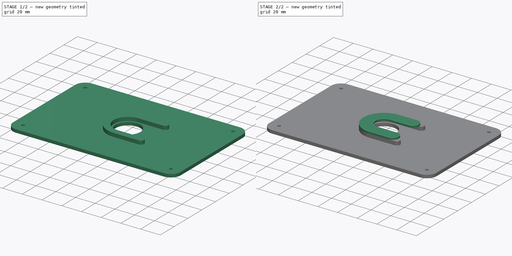
[diagram: build sequence overview — one tinted view per stage of 2, left to right]
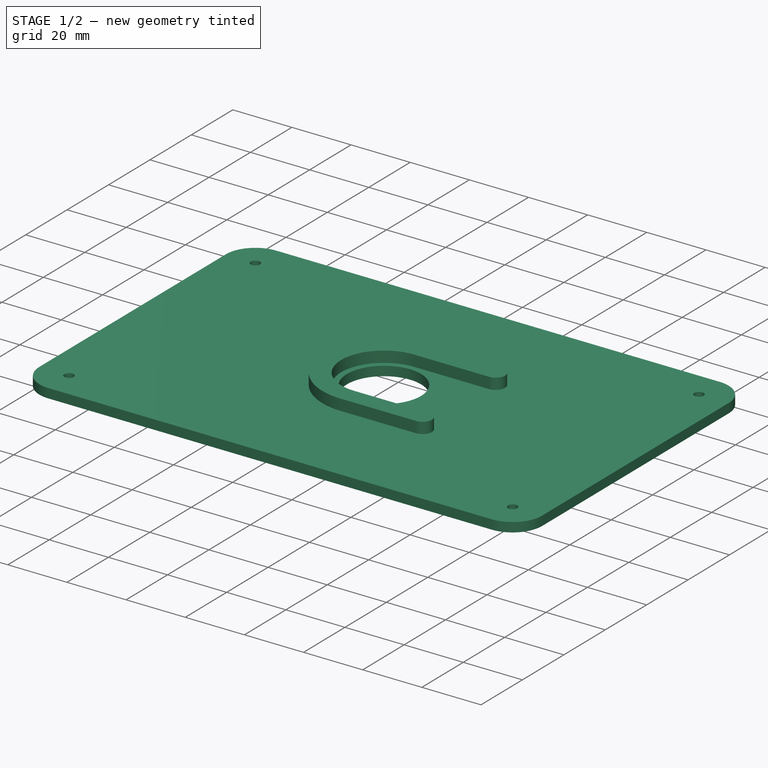
[diagram: stage 1 of 2 — iso view after this stage's code; geometry added in this stage tinted green]
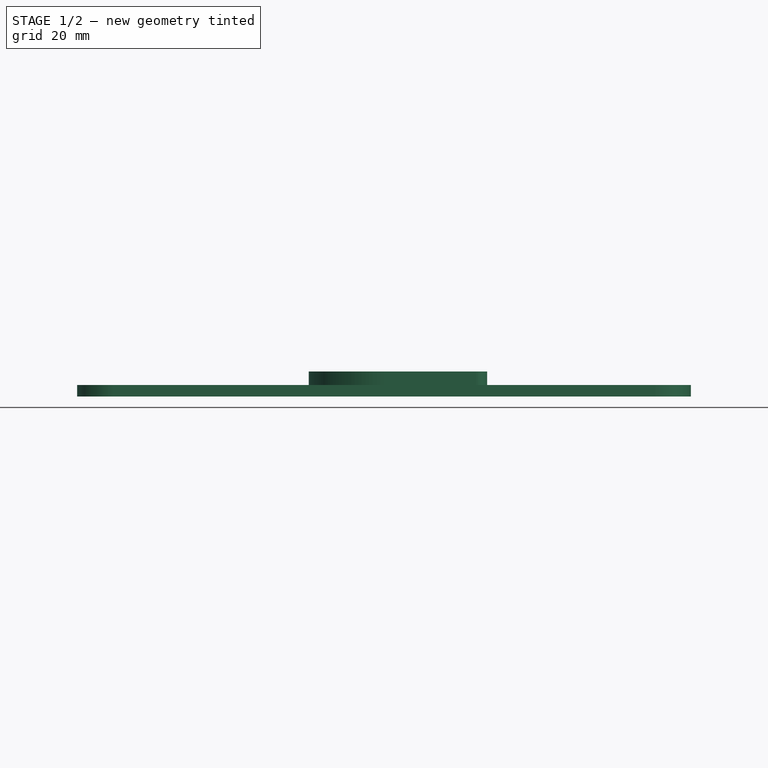
[diagram: stage 1 of 2 — front view after this stage's code; geometry added in this stage tinted green]
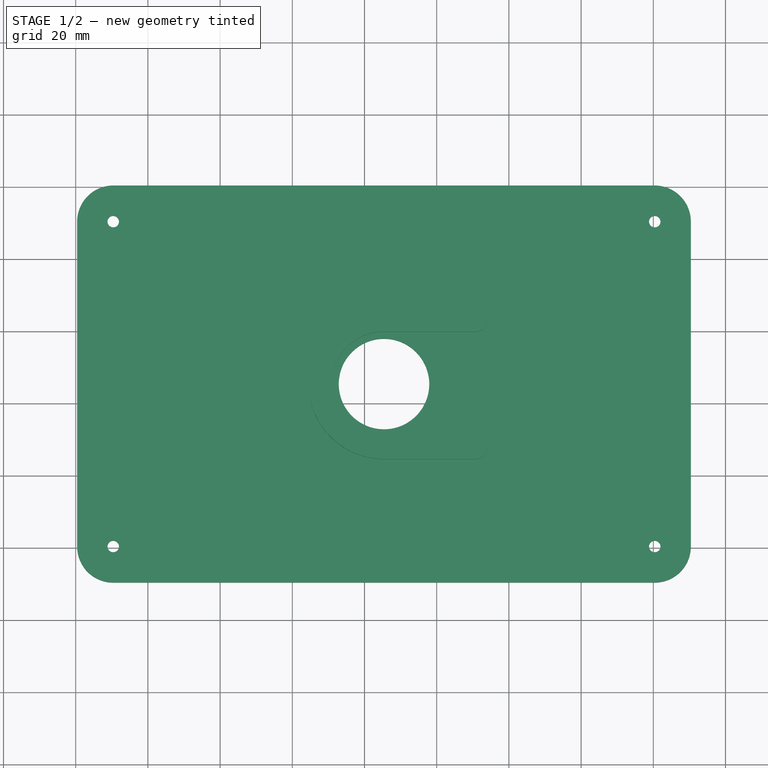
[diagram: stage 1 of 2 — top view after this stage's code; geometry added in this stage tinted green]
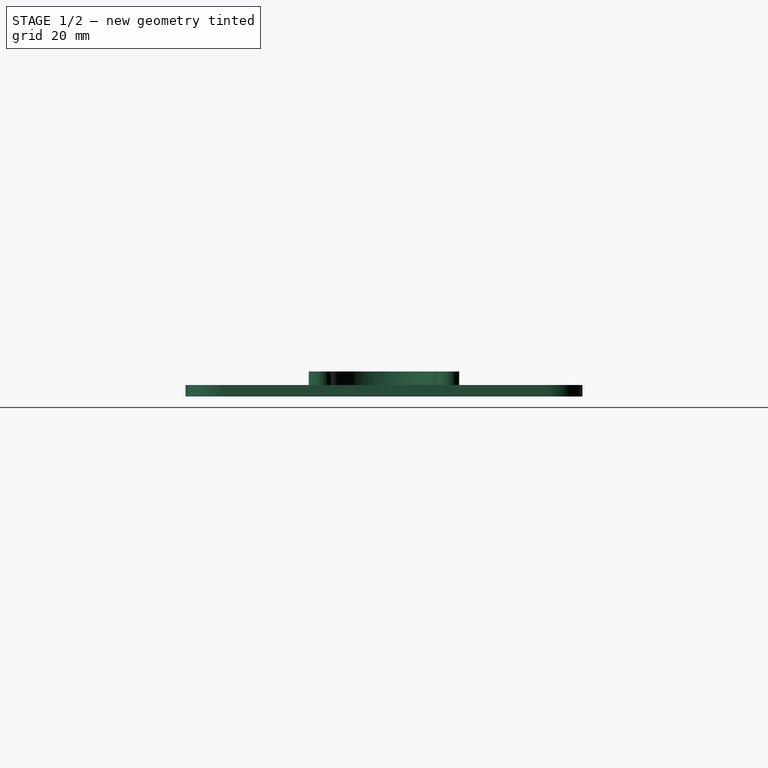
[diagram: stage 1 of 2 — right view after this stage's code; geometry added in this stage tinted green]
FCSTD DOCUMENT  (FreeCAD 1.0R39109 (Git))
Label: SpeakerBaffel150x90
License: All rights reserved
LicenseURL: http://en.wikipedia.org/wiki/All_rights_reserved
objects: Sketcher::SketchObject×3, PartDesign::Pad×3, Spreadsheet::Sheet×1, PartDesign::Body×1, App::Part×1, Part::Feature×1
note: 17 computed .brp shape members not serialized (recipe doc carries the construction recipe); baked Part::Feature solids carry a one-line shape summary decoded from their .brp

FEATURE [Sketcher::SketchObject] Sketch
  ArcFitTolerance = 1e-06
  AttachmentSupport = -> [XY_Plane001]
  FullyConstrained = true
  MakeInternals = false
  MapMode = 5
  expr: Constraints[10] = <<Spreadsheet>>.BaseCenterVert
  expr: Constraints[11] = <<Spreadsheet>>.SpeakerGasketDiameterInner
  expr: Constraints[45] = <<Spreadsheet>>.BaseHolesHorz
  expr: Constraints[46] = <<Spreadsheet>>.BaseHolesVert
  sketch-geometry (20):
    g0: LineSegment [constr] StartX=-49.6 StartY=70.4 StartZ=0 EndX=-49.6 EndY=-19.6 EndZ=0
    g1: LineSegment [constr] StartX=-49.6 StartY=-19.6 StartZ=0 EndX=100.4 EndY=-19.6 EndZ=0
    g2: LineSegment [constr] StartX=100.4 StartY=-19.6 StartZ=0 EndX=100.4 EndY=70.4 EndZ=0
    g3: LineSegment [constr] StartX=100.4 StartY=70.4 StartZ=0 EndX=-49.6 EndY=70.4 EndZ=0
    g4: GeomPoint X=25.4 Y=25.4 Z=0
    g5: Circle CenterX=25.4 CenterY=25.4 CenterZ=0 NormalX=0 NormalY=0 NormalZ=1 AngleXU=0 Radius=12.535
    g6: LineSegment StartX=-59.6 StartY=70.4 StartZ=0 EndX=-59.6 EndY=-19.6 EndZ=0
    g7: LineSegment StartX=-49.6 StartY=-29.6 StartZ=0 EndX=100.4 EndY=-29.6 EndZ=0
    g8: LineSegment StartX=110.4 StartY=-19.6 StartZ=0 EndX=110.4 EndY=70.4 EndZ=0
    g9: LineSegment StartX=100.4 StartY=80.4 StartZ=0 EndX=-49.6 EndY=80.4 EndZ=0
    g10: ArcOfCircle CenterX=-49.6 CenterY=70.4 CenterZ=0 NormalX=0 NormalY=0 NormalZ=1 AngleXU=0 Radius=10 StartAngle=1.5708 EndAngle=3.14159
    g11: ArcOfCircle CenterX=-49.6 CenterY=-19.6 CenterZ=0 NormalX=0 NormalY=0 NormalZ=1 AngleXU=0 Radius=10 StartAngle=3.14159 EndAngle=4.71239
    g12: ArcOfCircle CenterX=100.4 CenterY=-19.6 CenterZ=0 NormalX=0 NormalY=0 NormalZ=1 AngleXU=0 Radius=10 StartAngle=4.71239 EndAngle=6.28319
    g13: ArcOfCircle CenterX=100.4 CenterY=70.4 CenterZ=0 NormalX=0 NormalY=0 NormalZ=1 AngleXU=0 Radius=10 StartAngle=0 EndAngle=1.5708
    g14: GeomPoint [constr] X=-59.6 Y=80.4 Z=0
    g15: GeomPoint [constr] X=110.4 Y=-29.6 Z=0
    g16: Circle CenterX=-49.6 CenterY=70.4 CenterZ=0 NormalX=0 NormalY=0 NormalZ=1 AngleXU=0 Radius=1.5875
    g17: Circle CenterX=-49.6 CenterY=-19.6 CenterZ=0 NormalX=0 NormalY=0 NormalZ=1 AngleXU=0 Radius=1.5875
    g18: Circle CenterX=100.4 CenterY=-19.6 CenterZ=0 NormalX=0 NormalY=0 NormalZ=1 AngleXU=0 Radius=1.5875
    g19: Circle CenterX=100.4 CenterY=70.4 CenterZ=0 NormalX=0 NormalY=0 NormalZ=1 AngleXU=0 Radius=1.5875
  constraints (47):
    c: Coincident(g0,g1)
    c: Coincident(g1,g2)
    c: Coincident(g2,g3)
    c: Coincident(g3,g0)
    c: Vertical(g0)
    c: Vertical(g2)
    c: Horizontal(g1)
    c: Horizontal(g3)
    c: Symmetric(g0,g1,g4)
    c: Distance(g4,g-2) = 25.4
    c: Distance(g4,g-1) = 25.4
    c: Diameter(g5) = 25.07
    c: Distance(g5,g-1) = 25.4
    c: Distance(g5,g-2) = 25.4
    c: Tangent(g6,g10) = -1.5708
    c: Tangent(g6,g11) = -1.5708
    c: Tangent(g7,g11) = -1.5708
    c: Tangent(g7,g12) = -1.5708
    c: Tangent(g8,g12) = -1.5708
    c: Tangent(g8,g13) = -1.5708
    c: Tangent(g9,g13) = -1.5708
    c: Tangent(g9,g10) = -1.5708
    c: Vertical(g6)
    c: Vertical(g8)
    c: Horizontal(g7)
    c: Horizontal(g9)
    c: Equal(g10,g11)
    c: Equal(g11,g12)
    c: Equal(g12,g13)
    c: PointOnObject(g14,g6)
    c: PointOnObject(g14,g9)
    c: PointOnObject(g15,g7)
    c: PointOnObject(g15,g8)
    c: DistanceX(g9,g9) = 150
    c: DistanceY(g6,g6) = 90
    c: Symmetric(g10,g12,g4)
    c: Radius(g10) = 10
    c: Coincident(g16,g0)
    c: Coincident(g17,g0)
    c: Coincident(g18,g1)
    c: Coincident(g19,g2)
    c: Equal(g19,g18)
    c: Equal(g18,g17)
    c: Equal(g17,g16)
    c: Diameter(g16) = 3.175
    c: DistanceX(g3,g3) = 150
    c: DistanceY(g0,g0) = 90
FEATURE [PartDesign::Pad] Pad  label="PadBase"
  Direction = (0,0,1)
  Length = 3.175
  Length2 = 10
  Profile = -> Sketch
  ReferenceAxis = -> Sketch [N_Axis]
  Suppressed = false
  Type = 0
  expr: Length = <<Spreadsheet>>.BaseThickness
FEATURE [Spreadsheet::Sheet] Spreadsheet
  cells = A1='Speaker Baffel; A6='Base Dimensions; A7='BaseWidth; B7(BaseWidth)==150 mm; A8='BaseHeight; B8(BaseHeight)==90 mm; A9='BaseCornerRadius; B9(BaseCornerRadius)==10 mm; A10='BaseThickness; B10(BaseThickness)==0.125 "; A11='BaseCenterHorz; B11(BaseCenterHorz)==1 "; A12='BaseCenterVert; B12(BaseCenterVert)==1 "; A13='BaseHolesHorz; B13(BaseHolesHorz)==B7; A14='BaseHolesVert; B14(BaseHolesVert)==B8; A15='BaseHolesDiametr; B15(BaseHolesDiametr)==0.125 "; A17='SpeakerMount; A18='SpeakerCentHorz; B18(SpeakerCentHorz)==B11; A19='SpeakerCentVert; B19(SpeakerCentVert)==B12; A20='SpeakerMajorDiameter; B20(SpeakerMajorDiameter)==27.98 mm; A21='SpeakerGasketDiameterOuter; B21(SpeakerGasketDiameterOuter)==26.63 mm; A22='SpeakerGasketDiameterInner; B22(SpeakerGasketDiameterInner)==25.07 mm; A23='SpeakerMagnetDiameterInner; B23==2 * D23; D23==0.315 "; A24='SpeakerMagnetClearance; B24==1 mm; A25='SpeakerRetainerDiameterInner; B25(SpeakerRetainerDiameterInner)==B23 + B24
FEATURE [Sketcher::SketchObject] Sketch001
  ArcFitTolerance = 1e-06
  AttachmentSupport = -> [Pad]
  ExternalGeometry = -> [Sketch]
  FullyConstrained = true
  MakeInternals = false
  MapMode = 5
  Placement = pos=(0,0,3.175) rot=(0,0,1;0rad)
  expr: Constraints[25] = <<Spreadsheet>>.SpeakerMajorDiameter + 0.039 "
  sketch-geometry (12):
    g0: ArcOfCircle CenterX=25.4 CenterY=25.4 CenterZ=0 NormalX=0 NormalY=0 NormalZ=1 AngleXU=0 Radius=20.8353 StartAngle=1.5708 EndAngle=4.71239
    g1: ArcOfCircle [constr] CenterX=25.4 CenterY=43.0603 CenterZ=0 NormalX=0 NormalY=0 NormalZ=1 AngleXU=0 Radius=3.175 StartAngle=4.71239 EndAngle=7.85398
    g2: ArcOfCircle [constr] CenterX=25.4 CenterY=7.7397 CenterZ=0 NormalX=0 NormalY=0 NormalZ=1 AngleXU=0 Radius=3.175 StartAngle=4.71239 EndAngle=7.85398
    g3: ArcOfCircle CenterX=25.4 CenterY=25.4 CenterZ=0 NormalX=0 NormalY=0 NormalZ=1 AngleXU=0 Radius=14.4853 StartAngle=1.5708 EndAngle=4.71239
    g4: ArcOfCircle [constr] CenterX=25.4 CenterY=43.0603 CenterZ=0 NormalX=0 NormalY=0 NormalZ=1 AngleXU=0 Radius=3.175 StartAngle=1.5708 EndAngle=4.71239
    g5: ArcOfCircle CenterX=50.8 CenterY=43.0603 CenterZ=0 NormalX=0 NormalY=0 NormalZ=1 AngleXU=0 Radius=3.175 StartAngle=4.71239 EndAngle=7.85398
    g6: LineSegment StartX=25.4 StartY=46.2353 StartZ=0 EndX=50.8 EndY=46.2353 EndZ=0
    g7: LineSegment StartX=25.4 StartY=39.8853 StartZ=0 EndX=50.8 EndY=39.8853 EndZ=0
    g8: ArcOfCircle [constr] CenterX=25.4 CenterY=7.7397 CenterZ=0 NormalX=0 NormalY=0 NormalZ=1 AngleXU=0 Radius=3.175 StartAngle=1.5708 EndAngle=4.71239
    g9: ArcOfCircle CenterX=50.8 CenterY=7.7397 CenterZ=0 NormalX=0 NormalY=0 NormalZ=1 AngleXU=0 Radius=3.175 StartAngle=4.71239 EndAngle=7.85398
    g10: LineSegment StartX=25.4 StartY=10.9147 StartZ=0 EndX=50.8 EndY=10.9147 EndZ=0
    g11: LineSegment StartX=25.4 StartY=4.5647 StartZ=0 EndX=50.8 EndY=4.5647 EndZ=0
  constraints (26):
    c: Coincident(g0,g3)
    c: Tangent(g3,g2) = 1.5708
    c: Tangent(g3,g1) = 1.5708
    c: Tangent(g0,g2) = -1.5708
    c: Tangent(g0,g1) = -1.5708
    c: Vertical(g1,g2)
    c: Vertical(g0,g1)
    c: Coincident(g0,g-3)
    c: Distance(g1,g0) = 6.35
    c: Tangent(g4,g6) = 1.5708
    c: Tangent(g4,g7) = -1.5708
    c: Tangent(g5,g6) = 1.5708
    c: Tangent(g5,g7) = -1.5708
    c: Equal(g4,g5)
    c: Coincident(g4,g1)
    c: Coincident(g4,g0)
    c: Tangent(g8,g10) = 1.5708
    c: Tangent(g8,g11) = -1.5708
    c: Tangent(g9,g10) = 1.5708
    c: Tangent(g9,g11) = -1.5708
    c: Equal(g8,g9)
    c: Coincident(g8,g2)
    c: Coincident(g8,g2)
    c: Vertical(g9,g5)
    c: DistanceX(g1,g5) = 25.4
    c: Diameter(g3) = 28.9706
FEATURE [PartDesign::Pad] Pad001  label="PadRetainerOuterDiam"
  BaseFeature = -> Pad
  Direction = (0,0,1)
  Length = 3.75
  Length2 = 10
  Profile = -> Sketch001
  ReferenceAxis = -> Sketch001 [N_Axis]
  Suppressed = false
  Type = 0
  expr: Length = 3.75 mm
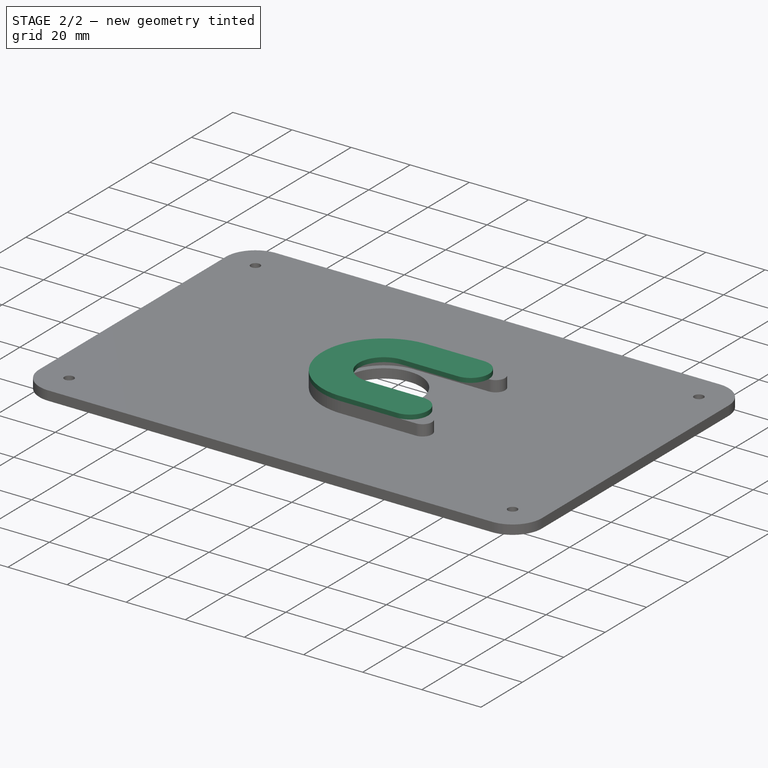
[diagram: stage 2 of 2 — iso view after this stage's code; geometry added in this stage tinted green]
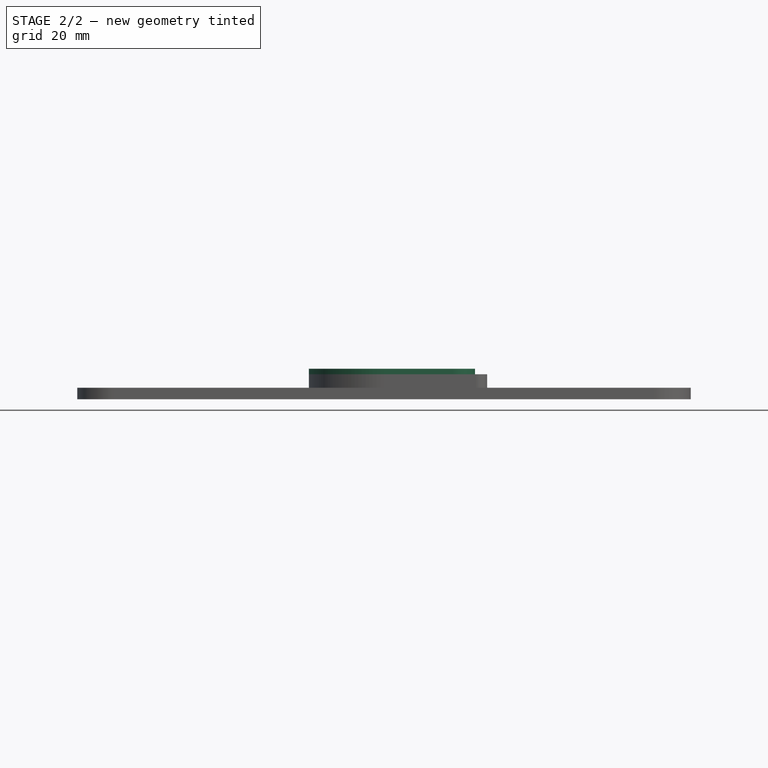
[diagram: stage 2 of 2 — front view after this stage's code; geometry added in this stage tinted green]
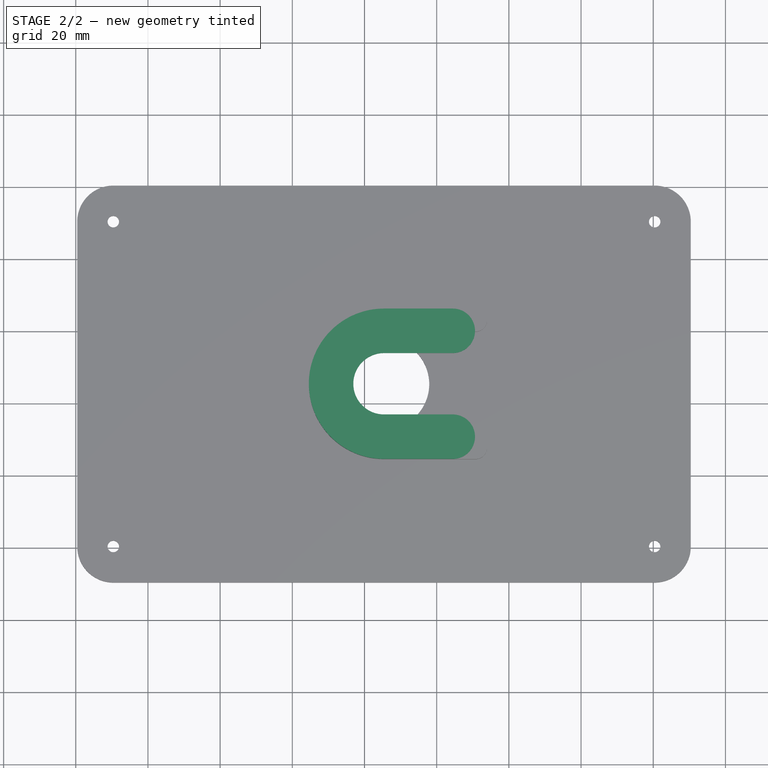
[diagram: stage 2 of 2 — top view after this stage's code; geometry added in this stage tinted green]
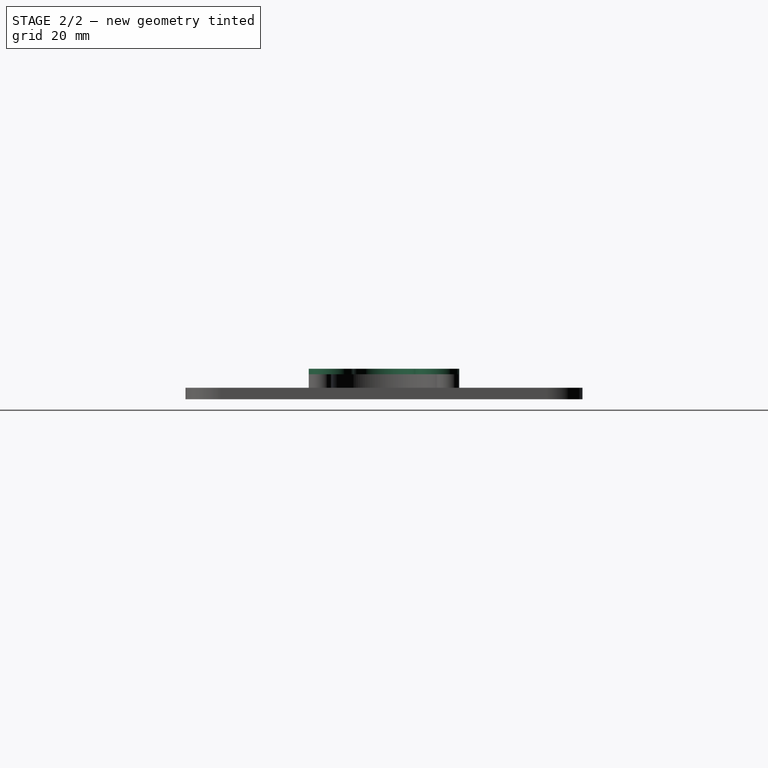
[diagram: stage 2 of 2 — right view after this stage's code; geometry added in this stage tinted green]
FEATURE [Sketcher::SketchObject] Sketch002
  ArcFitTolerance = 1e-06
  AttachmentSupport = -> [Pad001]
  ExternalGeometry = -> [Sketch,Pad001]
  FullyConstrained = true
  MakeInternals = false
  MapMode = 5
  Placement = pos=(0,0,6.925) rot=(0,0,1;0rad)
  expr: Constraints[9] = <<Spreadsheet>>.SpeakerRetainerDiameterInner
  sketch-geometry (12):
    g0: ArcOfCircle CenterX=25.4 CenterY=25.4 CenterZ=0 NormalX=0 NormalY=0 NormalZ=1 AngleXU=0 Radius=20.8353 StartAngle=1.5708 EndAngle=4.71239
    g1: ArcOfCircle [constr] CenterX=25.4 CenterY=10.7319 CenterZ=0 NormalX=0 NormalY=0 NormalZ=1 AngleXU=0 Radius=6.16715 StartAngle=4.71239 EndAngle=7.85398
    g2: ArcOfCircle [constr] CenterX=25.4 CenterY=40.0681 CenterZ=0 NormalX=0 NormalY=0 NormalZ=1 AngleXU=0 Radius=6.16715 StartAngle=4.71239 EndAngle=7.85398
    g3: ArcOfCircle CenterX=25.4 CenterY=25.4 CenterZ=0 NormalX=0 NormalY=0 NormalZ=1 AngleXU=0 Radius=8.501 StartAngle=1.5708 EndAngle=4.71239
    g4: ArcOfCircle [constr] CenterX=25.4 CenterY=40.0681 CenterZ=0 NormalX=0 NormalY=0 NormalZ=1 AngleXU=0 Radius=6.16715 StartAngle=1.5708 EndAngle=4.71239
    g5: ArcOfCircle CenterX=44.45 CenterY=40.0682 CenterZ=0 NormalX=0 NormalY=0 NormalZ=1 AngleXU=0 Radius=6.16715 StartAngle=4.71239 EndAngle=7.85398
    g6: LineSegment StartX=25.4 StartY=46.2353 StartZ=0 EndX=44.45 EndY=46.2353 EndZ=0
    g7: LineSegment StartX=25.4 StartY=33.901 StartZ=0 EndX=44.45 EndY=33.901 EndZ=0
    g8: ArcOfCircle [constr] CenterX=25.4 CenterY=10.7319 CenterZ=0 NormalX=0 NormalY=0 NormalZ=1 AngleXU=0 Radius=6.16715 StartAngle=1.5708 EndAngle=4.71239
    g9: ArcOfCircle CenterX=44.45 CenterY=10.7318 CenterZ=0 NormalX=0 NormalY=0 NormalZ=1 AngleXU=0 Radius=6.16715 StartAngle=4.71239 EndAngle=7.85398
    g10: LineSegment StartX=25.4 StartY=16.899 StartZ=0 EndX=44.45 EndY=16.899 EndZ=0
    g11: LineSegment StartX=25.4 StartY=4.5647 StartZ=0 EndX=44.45 EndY=4.5647 EndZ=0
  constraints (26):
    c: Coincident(g0,g3)
    c: Tangent(g3,g2) = 1.5708
    c: Tangent(g3,g1) = 1.5708
    c: Tangent(g0,g2) = -1.5708
    c: Tangent(g0,g1) = -1.5708
    c: Vertical(g2,g0)
    c: Vertical(g2,g1)
    c: Coincident(g0,g-3)
    c: Equal(g-4,g0)
    c: Diameter(g3) = 17.002
    c: Tangent(g4,g6) = 1.5708
    c: Tangent(g4,g7) = -1.5708
    c: Tangent(g5,g6) = 1.5708
    c: Tangent(g5,g7) = -1.5708
    c: Equal(g4,g5)
    c: Coincident(g4,g2)
    c: Tangent(g8,g10) = 1.5708
    c: Tangent(g8,g11) = -1.5708
    c: Tangent(g9,g10) = 1.5708
    c: Tangent(g9,g11) = -1.5708
    c: Equal(g8,g9)
    c: Coincident(g8,g1)
    c: Coincident(g4,g2)
    c: Coincident(g8,g1)
    c: Vertical(g5,g9)
    c: DistanceX(g2,g5) = 19.05
FEATURE [PartDesign::Pad] Pad002  label="Pad002RetainerMagnet"
  BaseFeature = -> Pad001
  Direction = (0,0,1)
  Length = 1.5
  Length2 = 10
  Profile = -> Sketch002
  ReferenceAxis = -> Sketch002 [N_Axis]
  Suppressed = false
  Type = 0
  expr: Length = 1.5 mm
FEATURE [PartDesign::Body] Body  label="BodySpeakerBaffel150x90"
  AllowCompound = false
  Group = -> [Sketch,Pad,Sketch001,Pad001,Sketch002,Pad002]
  Origin = -> Origin001
  Tip = -> Pad002
FEATURE [App::Part] Part  label="PartSpeakerBaffel150x90"
  Group = -> [Body]
  Origin = -> Origin
FEATURE [Part::Feature] Part__Feature  label="SpeakerOutline"
  Placement = pos=(39.624,25.4,3.048) rot=(0,0,1;0rad)
  shape: bbox 28 x 28 x 5.25 mm, 13 faces (baked)
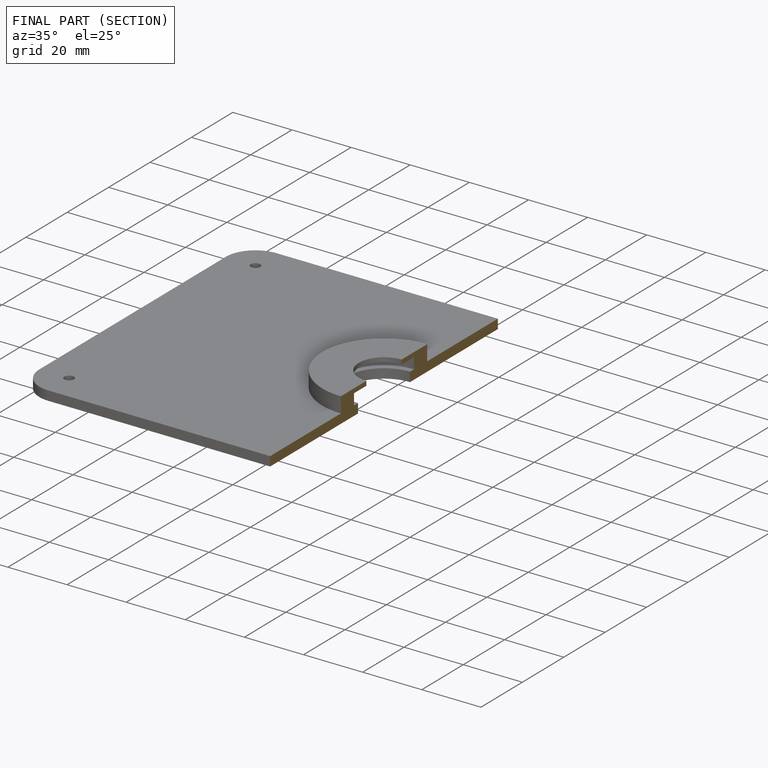
[diagram: finished part — half-section view (interior)]
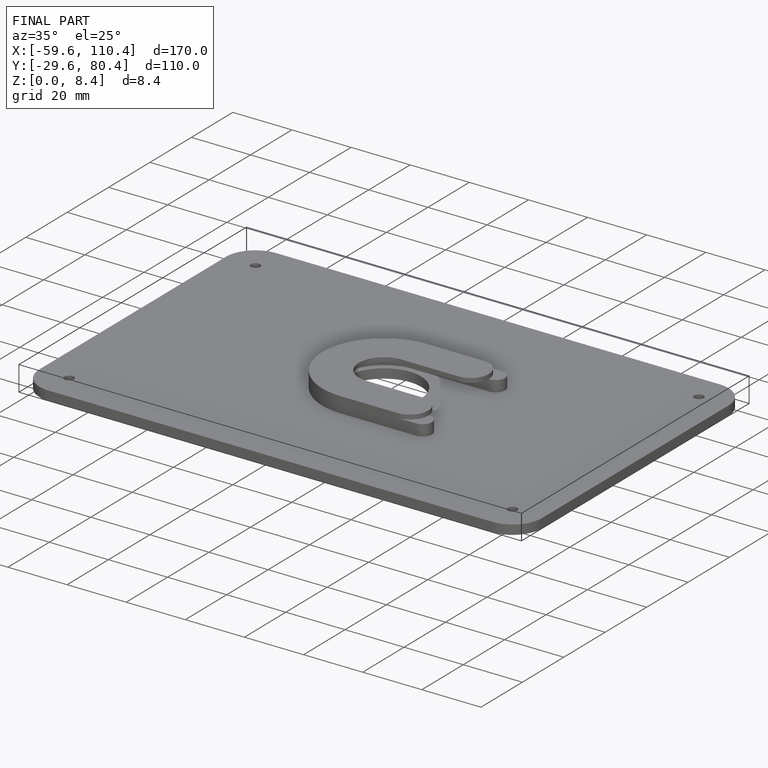
[diagram: finished part — iso view with bounding-box wireframe]
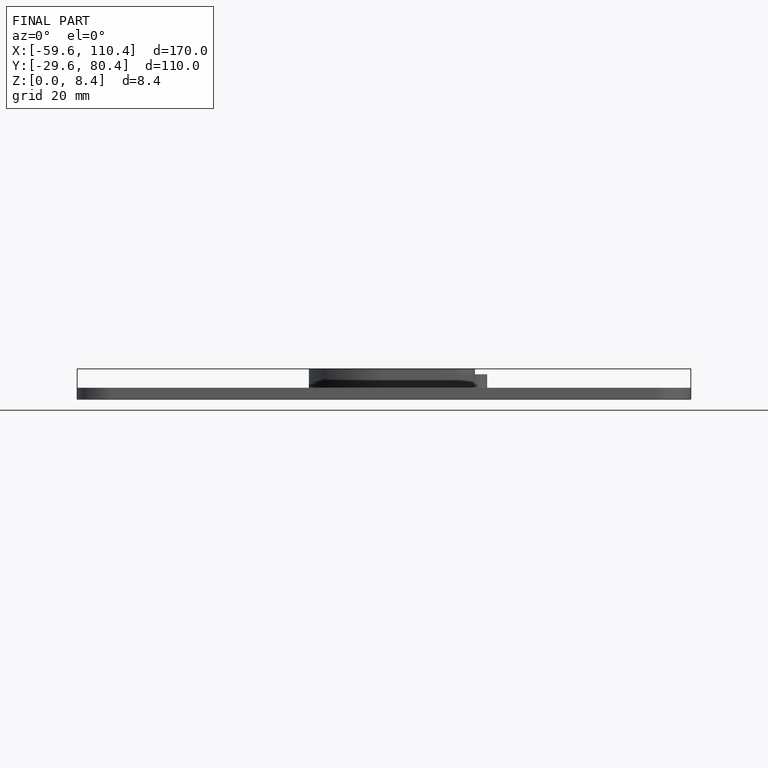
[diagram: finished part — front view with bounding-box wireframe]
